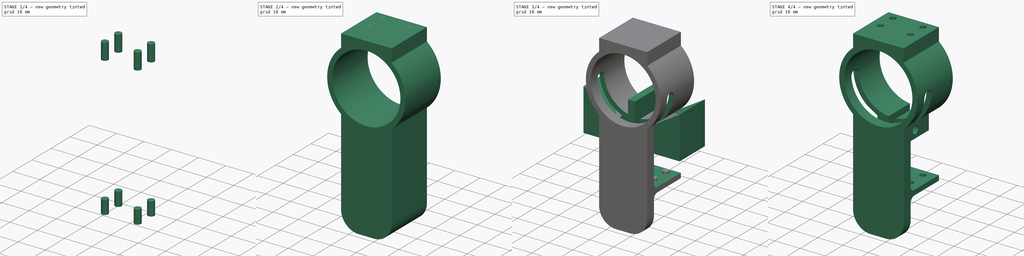
[diagram: build sequence overview — one tinted view per stage of 4, left to right]
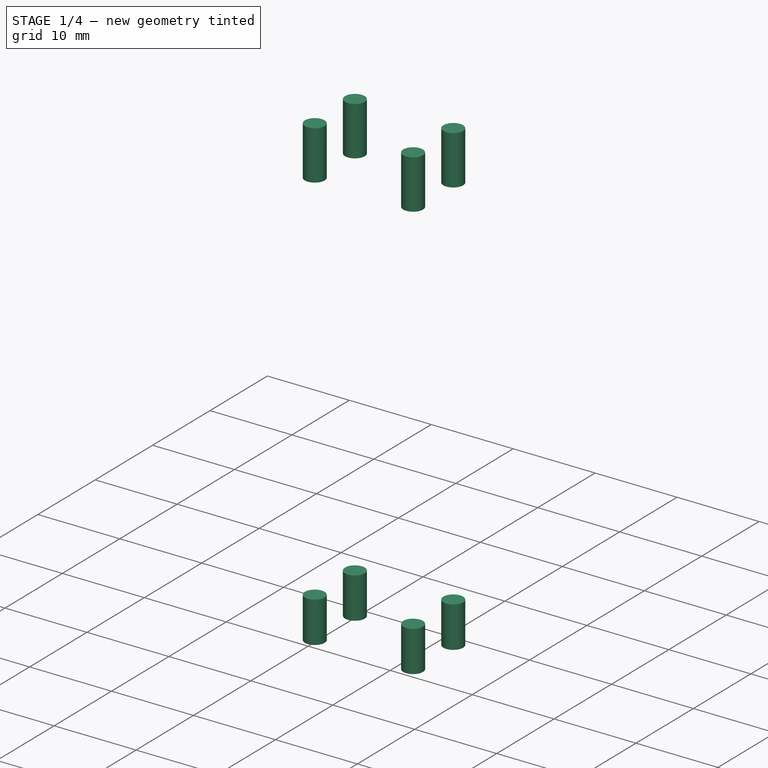
[diagram: stage 1 of 4 — iso view after this stage's code; geometry added in this stage tinted green]
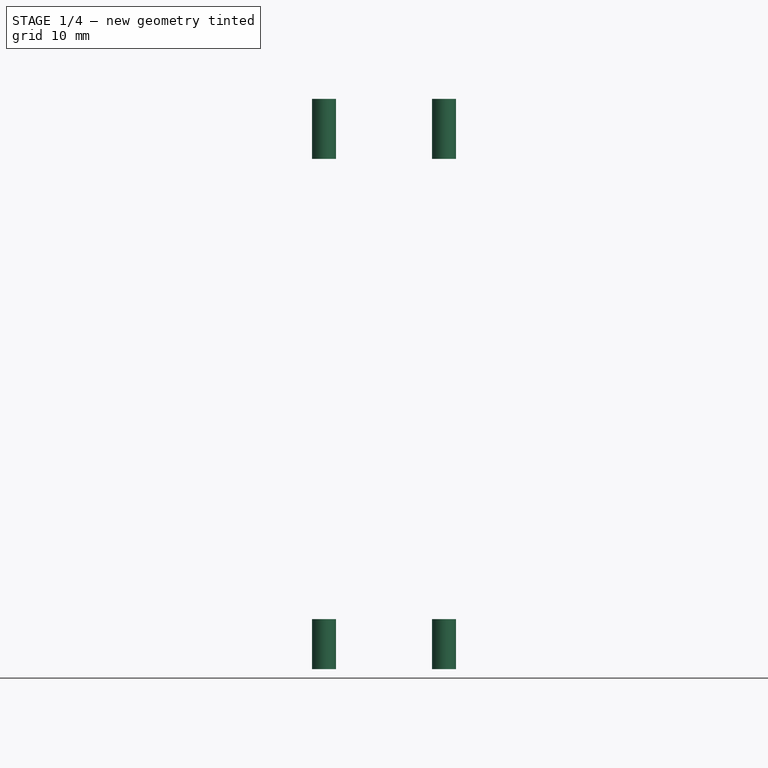
[diagram: stage 1 of 4 — front view after this stage's code; geometry added in this stage tinted green]
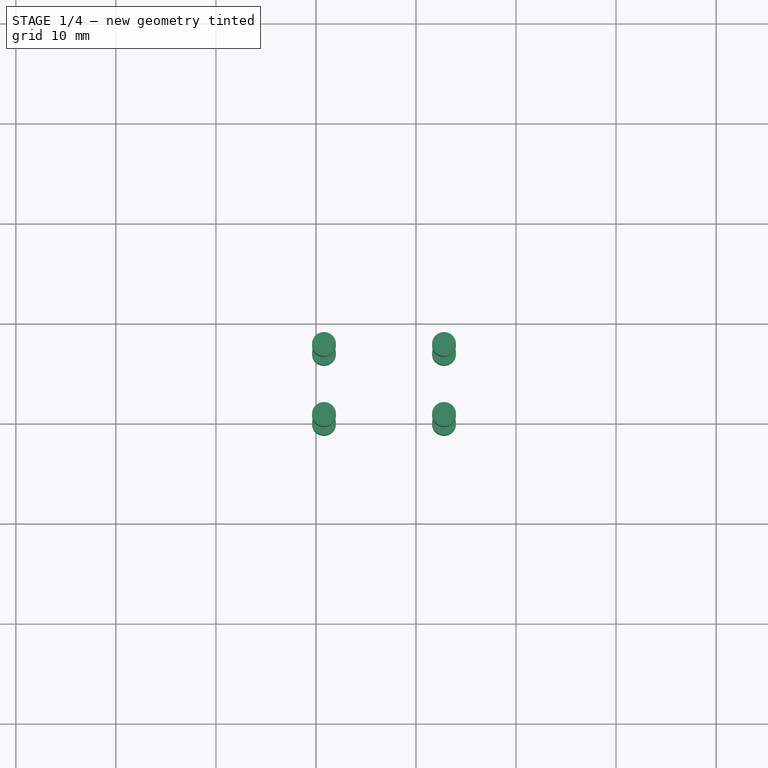
[diagram: stage 1 of 4 — top view after this stage's code; geometry added in this stage tinted green]
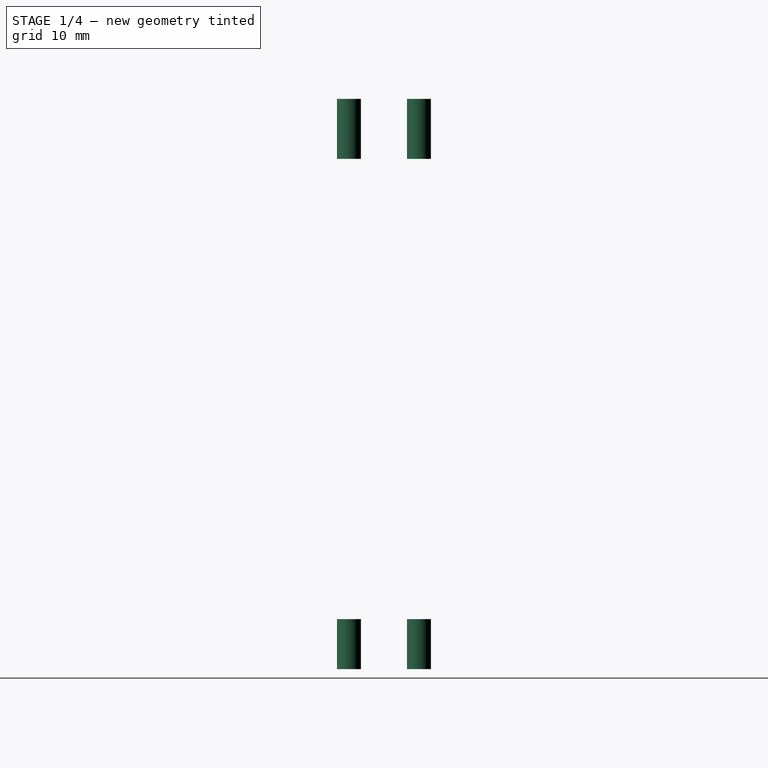
[diagram: stage 1 of 4 — right view after this stage's code; geometry added in this stage tinted green]
FCSTD DOCUMENT  (FreeCAD 0.16R6698 (Git))
Label: body-bracket-c
License: All rights reserved
LicenseURL: http://en.wikipedia.org/wiki/All_rights_reserved
objects: Part::Extrusion×5, Sketcher::SketchObject×4, Part::Cut×3, Part::MultiFuse×1
note: 13 computed .brp shape members not serialized (recipe doc carries the construction recipe); baked Part::Feature solids carry a one-line shape summary decoded from their .brp

FEATURE [Sketcher::SketchObject] Sketch003
  Placement = pos=(0,0,70) rot=(0,0,1;0rad)
  sketch-geometry (5):
    g0: LineSegment [constr] StartX=16.8 StartY=0 StartZ=0 EndX=16.8 EndY=20 EndZ=0
    g1: Circle CenterX=10.8 CenterY=17 CenterZ=0 NormalX=0 NormalY=0 NormalZ=1 Radius=1.2
    g2: Circle CenterX=22.8 CenterY=17 CenterZ=0 NormalX=0 NormalY=0 NormalZ=1 Radius=1.2
    g3: Circle CenterX=10.8 CenterY=10 CenterZ=0 NormalX=0 NormalY=0 NormalZ=1 Radius=1.2
    g4: Circle CenterX=22.8 CenterY=10 CenterZ=0 NormalX=0 NormalY=0 NormalZ=1 Radius=1.2
  constraints (14):
    c: PointOnObject(g0,g-1)
    c: Vertical(g0)
    c: DistanceX(g-2,g0) = 16.8
    c: DistanceY(g0,g0) = 20
    c: Symmetric(g1,g2,g0)
    c: Symmetric(g3,g4,g0)
    c: Radius(g3) = 1.2
    c: Equal(g3,g4)
    c: Equal(g4,g2)
    c: Equal(g2,g1)
    c: Distance(g3,g4) = 12
    c: Distance(g1,g2) = 12
    c: DistanceY(g-1,g2) = 17
    c: DistanceY(g-1,g4) = 10
FEATURE [Part::Extrusion] Extrude003  label="Mounting_Holes_Top"
  Base = -> Sketch003
  Dir = (0,0,-6)
  Solid = true
FEATURE [Part::Extrusion] Extrude004  label="Mouning_Holes_Bottom"
  Base = -> Sketch003
  Dir = (0,0,5)
  Placement = pos=(0,0,-57) rot=(0,0,1;0rad)
  Solid = true
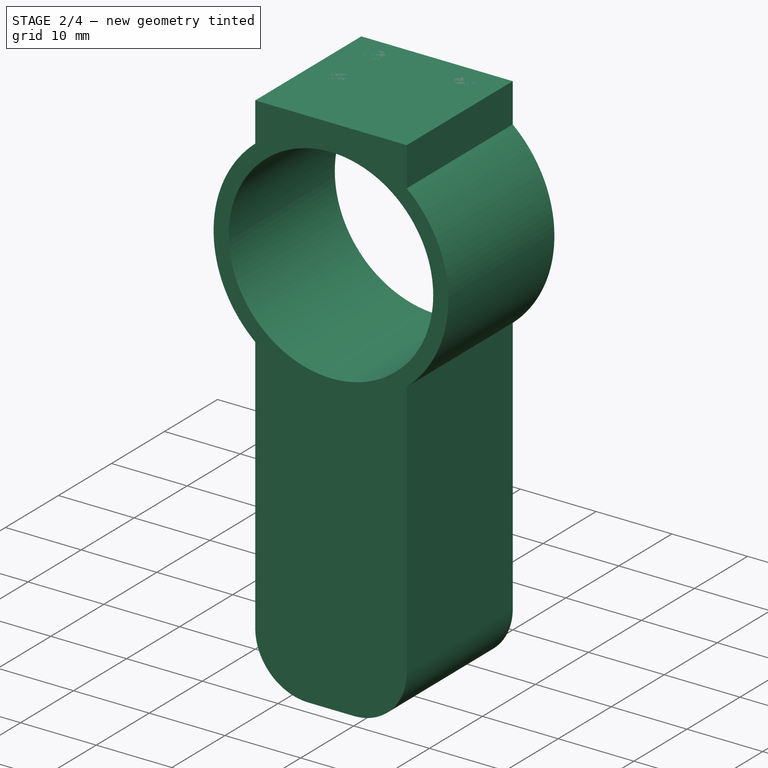
[diagram: stage 2 of 4 — iso view after this stage's code; geometry added in this stage tinted green]
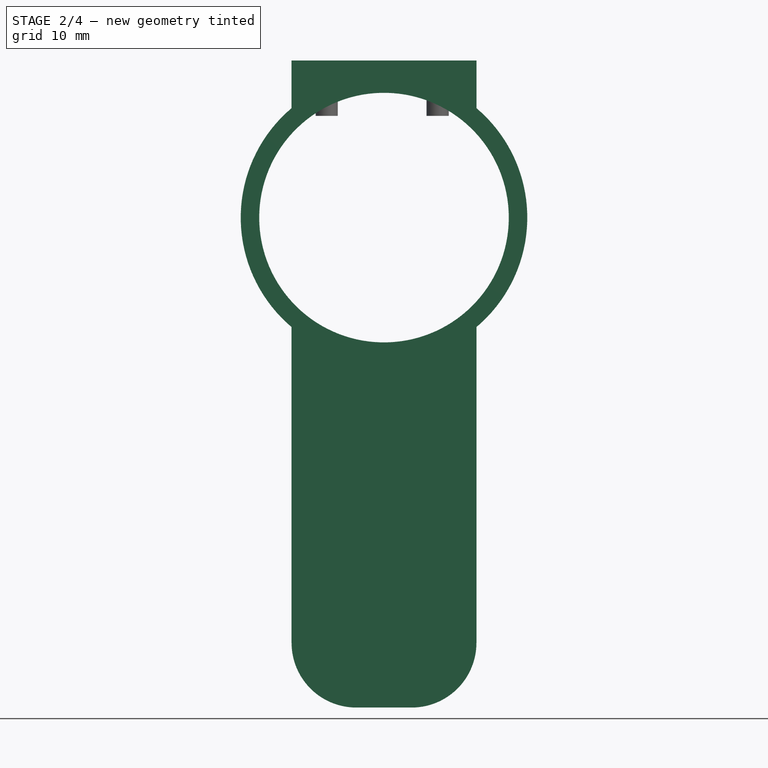
[diagram: stage 2 of 4 — front view after this stage's code; geometry added in this stage tinted green]
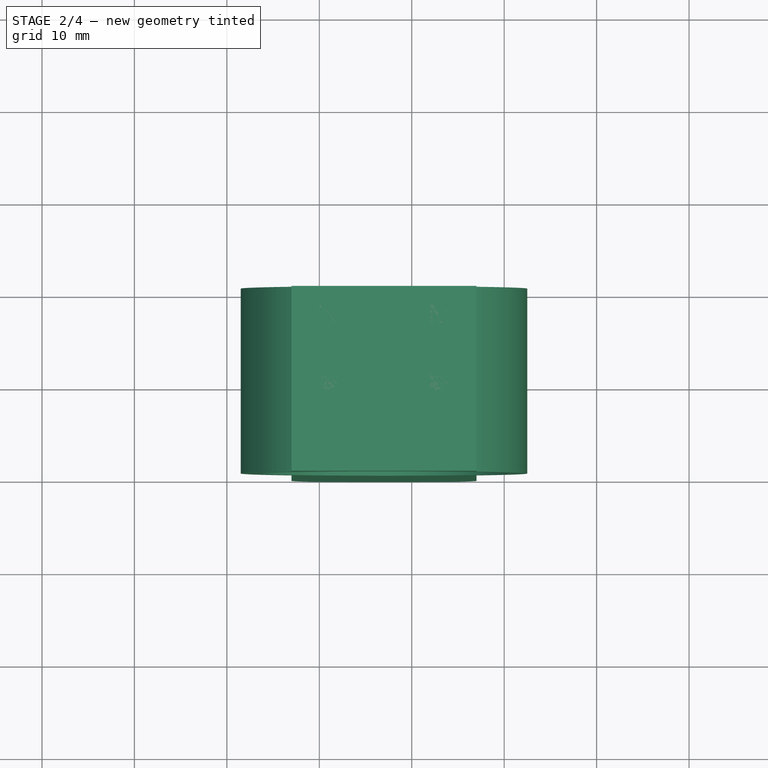
[diagram: stage 2 of 4 — top view after this stage's code; geometry added in this stage tinted green]
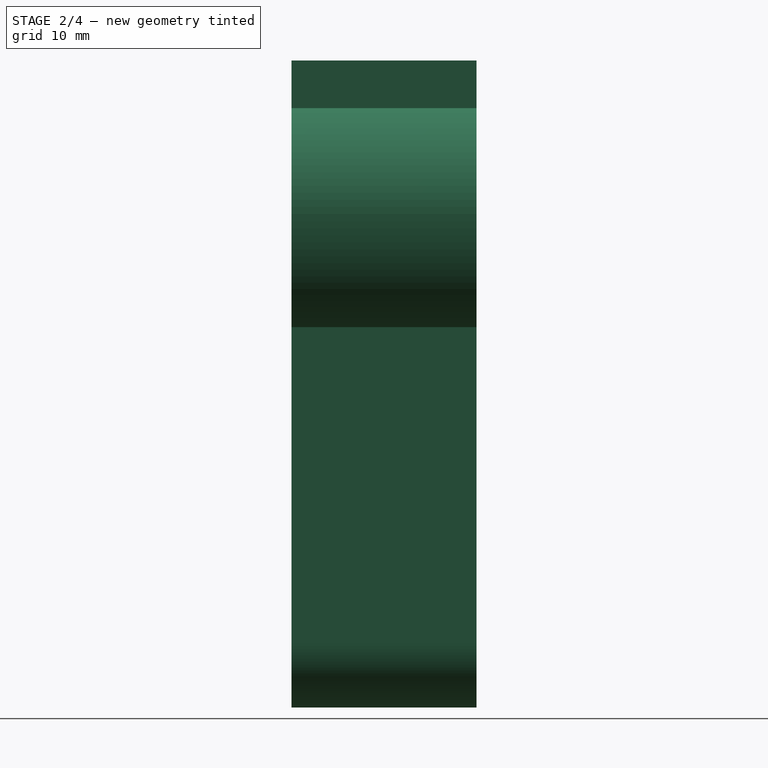
[diagram: stage 2 of 4 — right view after this stage's code; geometry added in this stage tinted green]
FEATURE [Sketcher::SketchObject] Sketch001
  Placement = pos=(17,0,0) rot=(1,0,0;1.5708rad)
  sketch-geometry (11):
    g0: LineSegment StartX=-10 StartY=70 StartZ=0 EndX=10 EndY=70 EndZ=0
    g1: Circle CenterX=0 CenterY=53 CenterZ=0 NormalX=0 NormalY=0 NormalZ=1 Radius=13.5
    g2: LineSegment StartX=-10 StartY=70 StartZ=0 EndX=-10 EndY=64.8427 EndZ=0
    g3: LineSegment StartX=-10 StartY=41.1573 StartZ=0 EndX=-10 EndY=7 EndZ=0
    g4: ArcOfCircle CenterX=0 CenterY=53 CenterZ=0 NormalX=0 NormalY=0 NormalZ=1 Radius=15.5 StartAngle=2.27203 EndAngle=4.01115
    g5: LineSegment StartX=10 StartY=70 StartZ=0 EndX=10 EndY=64.8427 EndZ=0
    g6: ArcOfCircle CenterX=0 CenterY=53 CenterZ=0 NormalX=0 NormalY=0 NormalZ=1 Radius=15.5 StartAngle=5.41362 EndAngle=7.15275
    g7: LineSegment StartX=10 StartY=41.1573 StartZ=0 EndX=10 EndY=7 EndZ=0
    g8: LineSegment StartX=-3 StartY=0 StartZ=0 EndX=3 EndY=0 EndZ=0
    g9: ArcOfCircle CenterX=3 CenterY=7 CenterZ=0 NormalX=0 NormalY=0 NormalZ=1 Radius=7 StartAngle=4.71239 EndAngle=6.28319
    g10: ArcOfCircle CenterX=-3 CenterY=7 CenterZ=0 NormalX=0 NormalY=0 NormalZ=1 Radius=7 StartAngle=3.14159 EndAngle=4.71239
  constraints (31):
    c: Horizontal(g0)
    c: PointOnObject(g1,g-2)
    c: DistanceY(g-1,g1) = 53
    c: Coincident(g0,g2)
    c: Vertical(g2)
    c: Vertical(g3)
    c: Coincident(g4,g1)
    c: Coincident(g4,g2)
    c: Coincident(g4,g3)
    c: Coincident(g5,g0)
    c: Vertical(g5)
    c: Coincident(g6,g1)
    c: Coincident(g6,g5)
    c: Vertical(g7)
    c: Coincident(g6,g7)
    c: Equal(g6,g4)
    c: Equal(g5,g2)
    c: Radius(g1) = 13.5
    c: Radius(g6) = 15.5
    c: DistanceY(g-1,g0) = 70
    c: Horizontal(g8)
    c: Tangent(g7,g9) = 1.5708
    c: Tangent(g8,g9) = -1.5708
    c: Tangent(g8,g10) = -1.5708
    c: Tangent(g3,g10) = -1.5708
    c: Equal(g10,g9)
    c: PointOnObject(g2,g3)
    c: PointOnObject(g5,g7)
    c: PointOnObject(g-1,g8)
    c: DistanceX(g3,g7) = 20
    c: Radius(g9) = 7
FEATURE [Part::Extrusion] Extrude001
  Base = -> Sketch001
  Dir = (0,20,0)
  Solid = true
FEATURE [Part::MultiFuse] Fusion
  Shapes = -> [Extrude004,Extrude003]
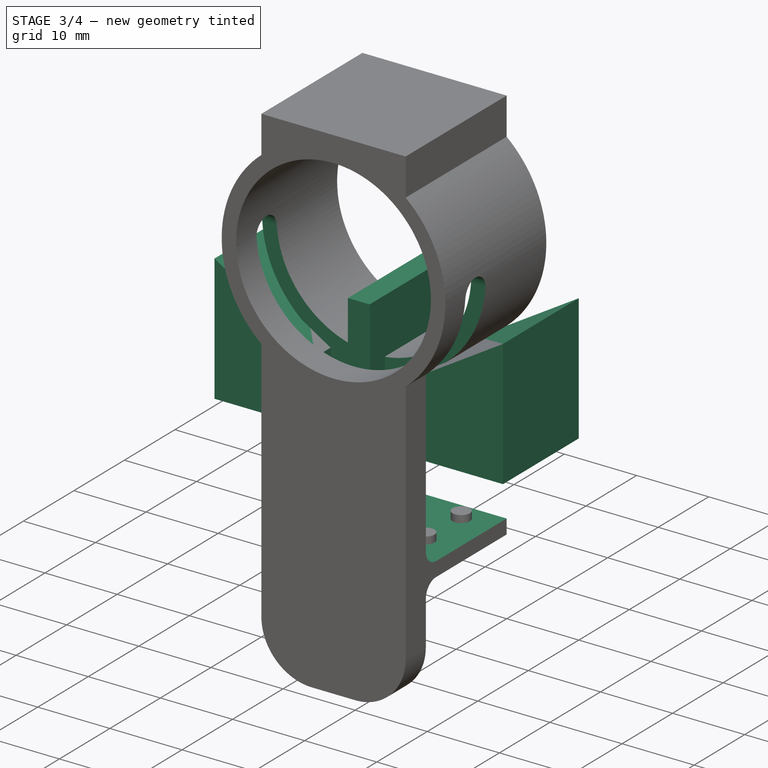
[diagram: stage 3 of 4 — iso view after this stage's code; geometry added in this stage tinted green]
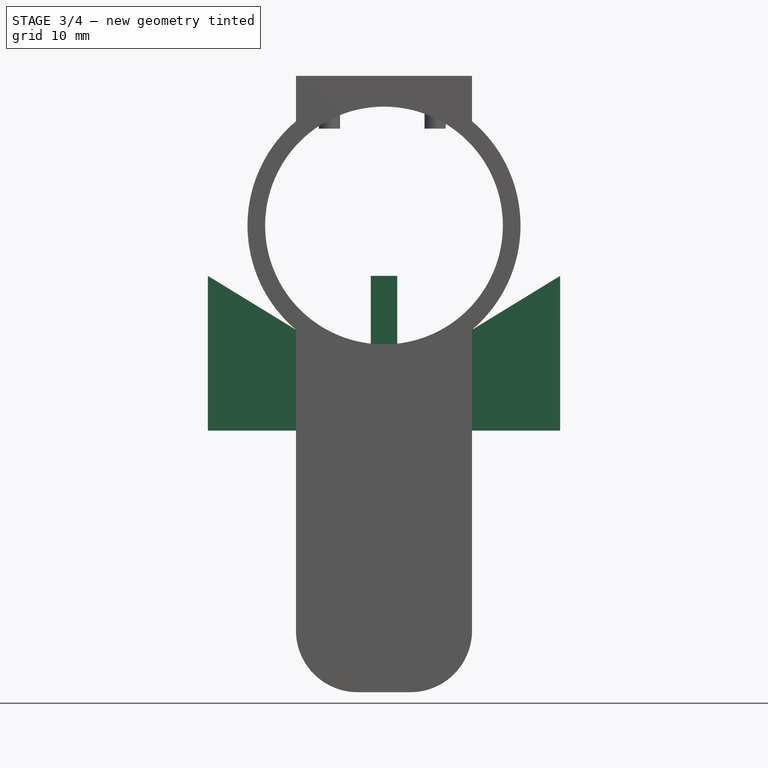
[diagram: stage 3 of 4 — front view after this stage's code; geometry added in this stage tinted green]
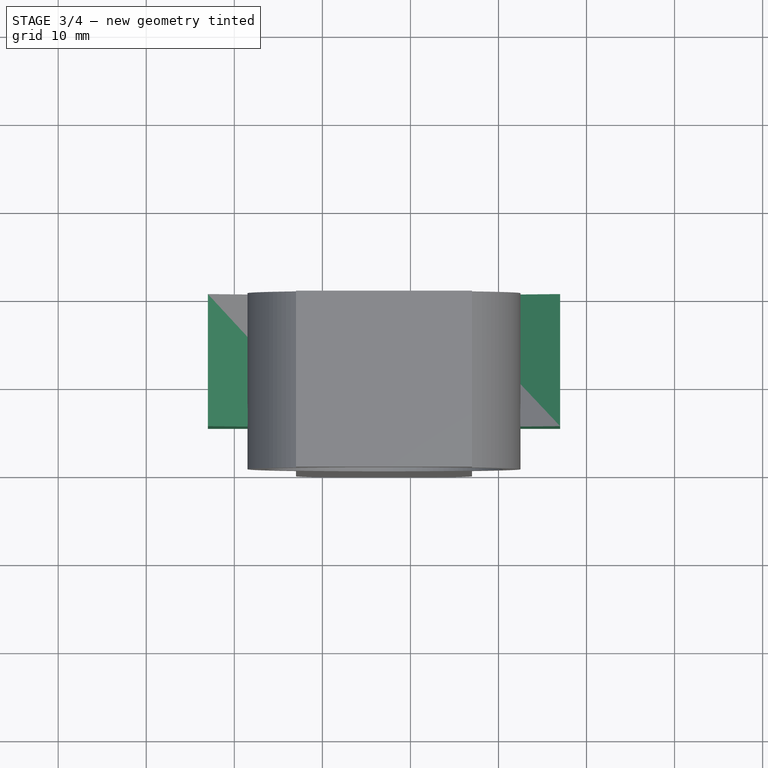
[diagram: stage 3 of 4 — top view after this stage's code; geometry added in this stage tinted green]
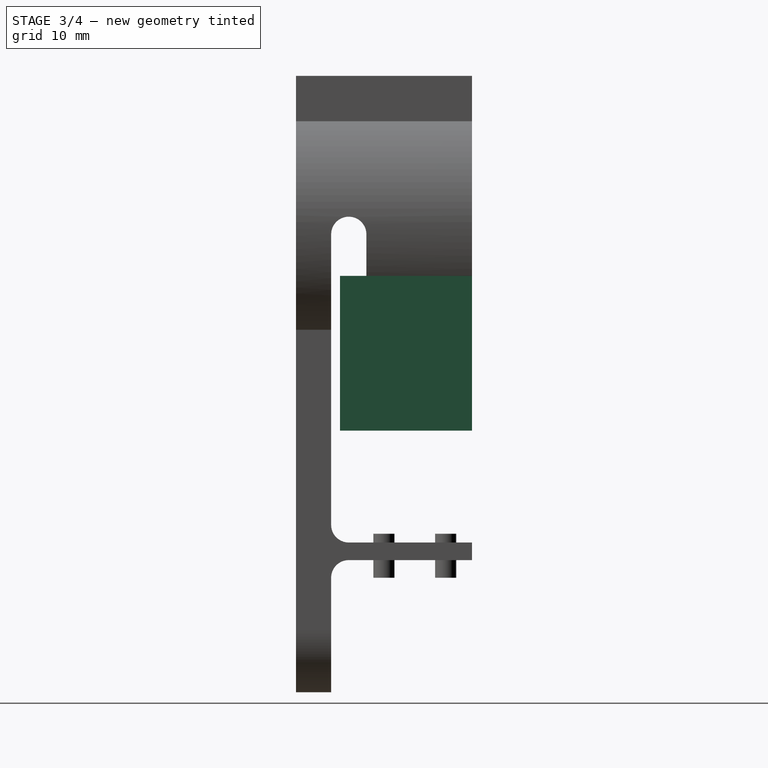
[diagram: stage 3 of 4 — right view after this stage's code; geometry added in this stage tinted green]
FEATURE [Sketcher::SketchObject] Sketch
  Placement = pos=(0,0,0) rot=(0.57735,0.57735,0.57735;2.0944rad)
  sketch-geometry (18):
    g0: LineSegment StartX=4 StartY=52 StartZ=0 EndX=4 EndY=19 EndZ=0
    g1: LineSegment StartX=6 StartY=17 StartZ=0 EndX=45 EndY=17 EndZ=0
    g2: LineSegment StartX=45 StartY=17 StartZ=0 EndX=45 EndY=32 EndZ=0
    g3: ArcOfCircle CenterX=6 CenterY=19 CenterZ=0 NormalX=0 NormalY=0 NormalZ=1 Radius=2 StartAngle=3.14159 EndAngle=4.71239
    g4: LineSegment [constr] StartX=4 StartY=19 StartZ=0 EndX=0 EndY=19 EndZ=0
    g5: LineSegment StartX=6 StartY=15 StartZ=0 EndX=45 EndY=15 EndZ=0
    g6: LineSegment StartX=45 StartY=15 StartZ=0 EndX=45 EndY=-5 EndZ=0
    g7: LineSegment StartX=45 StartY=-5 StartZ=0 EndX=6 EndY=-5 EndZ=0
    g8: LineSegment StartX=4 StartY=-3 StartZ=0 EndX=4 EndY=13 EndZ=0
    g9: ArcOfCircle CenterX=6 CenterY=13 CenterZ=0 NormalX=0 NormalY=0 NormalZ=1 Radius=2 StartAngle=1.5708 EndAngle=3.14159
    g10: ArcOfCircle CenterX=6 CenterY=-3 CenterZ=0 NormalX=0 NormalY=0 NormalZ=1 Radius=2 StartAngle=3.14159 EndAngle=4.71239
    g11: LineSegment [constr] StartX=4 StartY=13 StartZ=0 EndX=0 EndY=13 EndZ=0
    g12: LineSegment [constr] StartX=6 StartY=17 StartZ=0 EndX=6 EndY=15 EndZ=0
    g13: LineSegment StartX=8 StartY=52 StartZ=0 EndX=8 EndY=32 EndZ=0
    g14: LineSegment StartX=8 StartY=32 StartZ=0 EndX=45 EndY=32 EndZ=0
    g15: ArcOfCircle CenterX=6 CenterY=52 CenterZ=0 NormalX=0 NormalY=0 NormalZ=1 Radius=2 StartAngle=0 EndAngle=3.14159
    g16: LineSegment [constr] StartX=4 StartY=52 StartZ=0 EndX=8 EndY=52 EndZ=0
    g17: Circle CenterX=12.5 CenterY=35 CenterZ=0 NormalX=0 NormalY=0 NormalZ=1 Radius=1.5
  constraints (50):
    c: Coincident(g1,g2)
    c: Horizontal(g1)
    c: Vertical(g0)
    c: Vertical(g2)
    c: Tangent(g0,g3) = -1.5708
    c: Tangent(g1,g3) = -1.5708
    c: Coincident(g4,g0)
    c: Horizontal(g4)
    c: PointOnObject(g4,g-2)
    c: Coincident(g5,g6)
    c: Coincident(g6,g7)
    c: Horizontal(g5)
    c: Horizontal(g7)
    c: Vertical(g6)
    c: Vertical(g8)
    c: Tangent(g5,g9) = 1.5708
    c: Tangent(g8,g9) = 1.5708
    c: Tangent(g8,g10) = 1.5708
    c: Tangent(g7,g10) = 1.5708
    c: Equal(g10,g9)
    c: Equal(g9,g3)
    c: Coincident(g11,g8)
    c: PointOnObject(g11,g-2)
    c: Horizontal(g11)
    c: Radius(g10) = 2
    c: Coincident(g12,g1)
    c: Coincident(g12,g5)
    c: DistanceY(g-1,g5) = 15
    c: Distance(g12) = 2
    c: DistanceX(g-1,g6) = 45
    c: DistanceY(g7,g-1) = 5
    c: DistanceY(g-1,g2) = 32
    c: Vertical(g13)
    c: Coincident(g14,g13)
    c: Coincident(g14,g2)
    c: Horizontal(g14)
    c: Coincident(g15,g13)
    c: Equal(g15,g10)
    c: Coincident(g16,g13)
    c: Horizontal(g16)
    c: PointOnObject(g15,g16)
    c: Coincident(g15,g16)
    c: Coincident(g15,g0)
    c: DistanceY(g13,g13) = 20
    c: Equal(g1,g5)
    c: Radius(g17) = 1.5
    c: DistanceX(g13,g17) = 4.5
    c: DistanceY(g13,g17) = 3
    c: Distance(g11) = 4
    c: Vertical(g12)
FEATURE [Part::Extrusion] Extrude
  Base = -> Sketch
  Dir = (36,0,0)
  Placement = pos=(-1,0,0) rot=(0,0,1;0rad)
  Solid = true
FEATURE [Sketcher::SketchObject] Sketch002
  Placement = pos=(17,0,0) rot=(1,0,0;1.5708rad)
  sketch-geometry (15):
    g0: LineSegment StartX=-1.5 StartY=47.2795 StartZ=0 EndX=1.5 EndY=47.2795 EndZ=0
    g1: LineSegment StartX=1.5 StartY=47.2795 StartZ=0 EndX=1.5 EndY=29.7084 EndZ=0
    g2: LineSegment StartX=1.5 StartY=29.7084 StartZ=0 EndX=-1.5 EndY=29.7084 EndZ=0
    g3: LineSegment StartX=-1.5 StartY=29.7084 StartZ=0 EndX=-1.5 EndY=47.2795 EndZ=0
    g4: LineSegment StartX=6 StartY=38.7084 StartZ=0 EndX=6 EndY=29.7084 EndZ=0
    g5: LineSegment StartX=6 StartY=29.7084 StartZ=0 EndX=20 EndY=29.7084 EndZ=0
    g6: LineSegment StartX=20 StartY=29.7084 StartZ=0 EndX=20 EndY=47.2795 EndZ=0
    g7: LineSegment StartX=20 StartY=47.2795 StartZ=0 EndX=6 EndY=38.7084 EndZ=0
    g8: ArcOfCircle [constr] CenterX=0 CenterY=53 CenterZ=0 NormalX=0 NormalY=0 NormalZ=1 Radius=15.5 StartAngle=5.10987 EndAngle=5.41362
    g9: LineSegment StartX=-6 StartY=38.7084 StartZ=0 EndX=-6 EndY=29.7084 EndZ=0
    g10: LineSegment StartX=-6 StartY=29.7084 StartZ=0 EndX=-20 EndY=29.7084 EndZ=0
    g11: LineSegment StartX=-20 StartY=29.7084 StartZ=0 EndX=-20 EndY=47.2795 EndZ=0
    g12: LineSegment StartX=-20 StartY=47.2795 StartZ=0 EndX=-6 EndY=38.7084 EndZ=0
    g13: ArcOfCircle [constr] CenterX=0 CenterY=53 CenterZ=0 NormalX=0 NormalY=0 NormalZ=1 Radius=15.5 StartAngle=4.01115 EndAngle=4.31491
    g14: LineSegment [constr] StartX=10 StartY=41.1573 StartZ=0 EndX=-10 EndY=41.1573 EndZ=0
  constraints (45):
    c: Coincident(g0,g1)
    c: Coincident(g1,g2)
    c: Coincident(g2,g3)
    c: Coincident(g3,g0)
    c: Horizontal(g0)
    c: Vertical(g1)
    c: Vertical(g3)
    c: DistanceX(g0,g0) = 3
    c: Vertical(g4)
    c: Coincident(g4,g5)
    c: Horizontal(g5)
    c: Coincident(g5,g6)
    c: Vertical(g6)
    c: Coincident(g6,g7)
    c: Coincident(g7,g4)
    c: PointOnObject(g4,g2)
    c: DistanceY(g4,g4) = 9
    c: Coincident(g8,g4)
    c: Radius(g8) = 15.5
    c: PointOnObject(g8,g-2)
    c: PointOnObject(g8,g7)
    c: PointOnObject(g6,g0)
    c: Vertical(g9)
    c: Coincident(g9,g10)
    c: Horizontal(g10)
    c: Coincident(g10,g11)
    c: Vertical(g11)
    c: Coincident(g11,g12)
    c: Coincident(g12,g9)
    c: Coincident(g13,g9)
    c: PointOnObject(g13,g12)
    c: Equal(g10,g5)
    c: Equal(g8,g13)
    c: Equal(g11,g6)
    c: Symmetric(g9,g4,g-2)
    c: Equal(g9,g4)
    c: Coincident(g14,g8)
    c: Horizontal(g14)
    c: Coincident(g14,g13)
    c: Horizontal(g2)
    c: Symmetric(g2,g1,g-2)
    c: DistanceX(g9,g4) = 12
    c: Distance(g14) = 20
    c: DistanceX(g10,g5) = 40
    c: DistanceY(g-1,g8) = 53
FEATURE [Part::Extrusion] Extrude002
  Base = -> Sketch002
  Dir = (0,15,0)
  Placement = pos=(0,5,0) rot=(0,0,1;0rad)
  Solid = true
FEATURE [Part::Cut] Cut
  Base = -> Extrude001
  Tool = -> Extrude
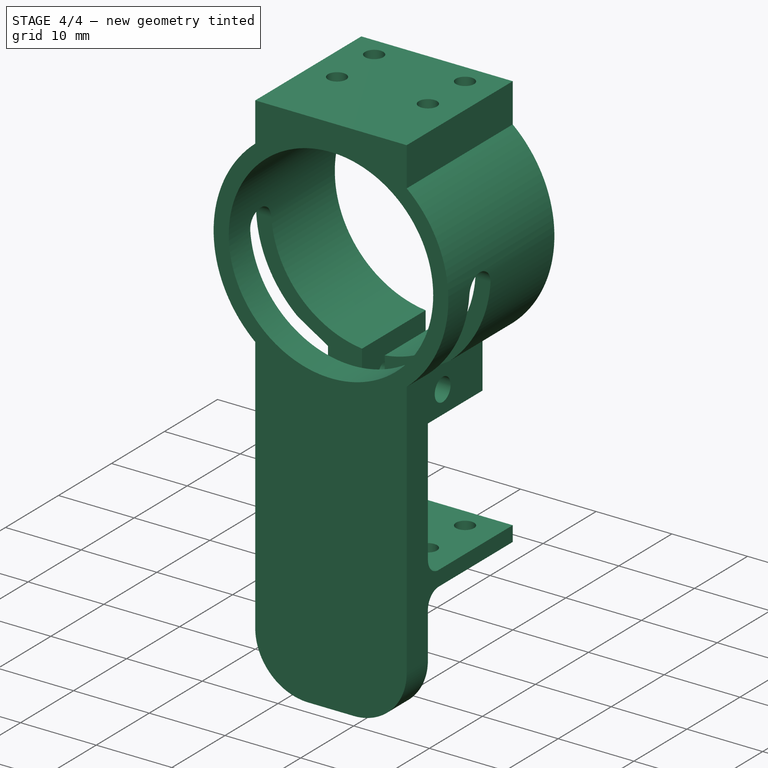
[diagram: stage 4 of 4 — iso view after this stage's code; geometry added in this stage tinted green]
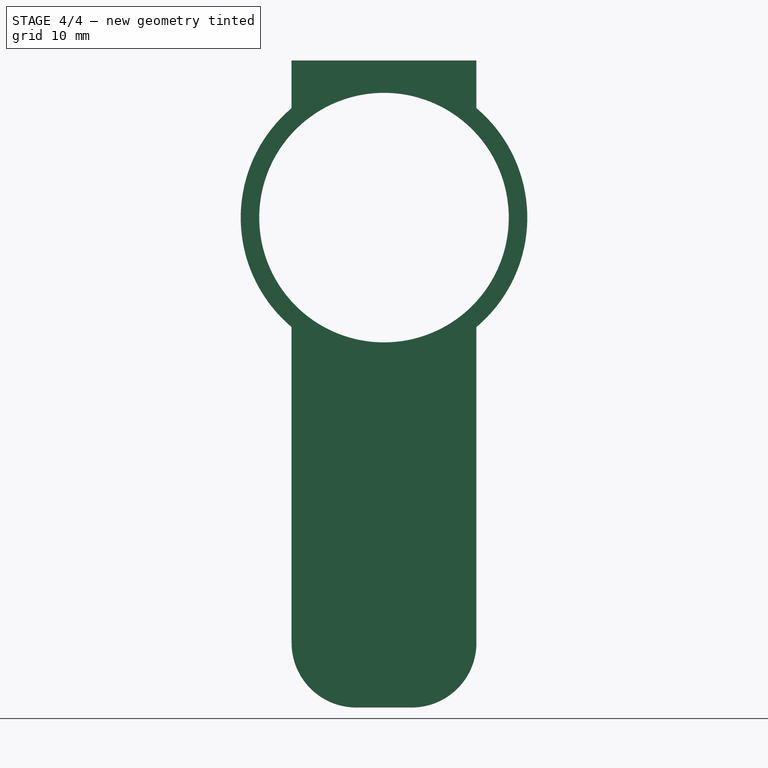
[diagram: stage 4 of 4 — front view after this stage's code; geometry added in this stage tinted green]
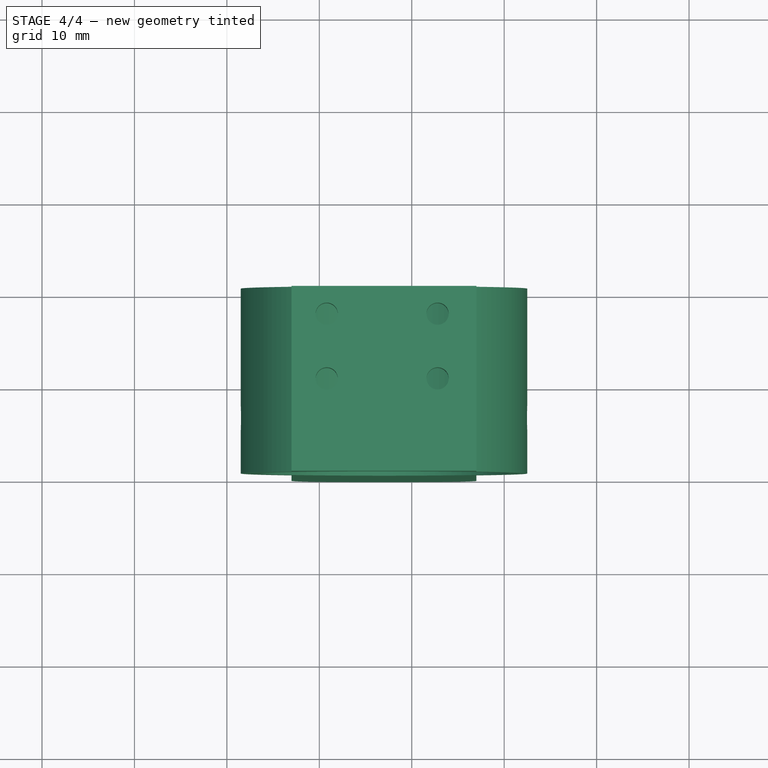
[diagram: stage 4 of 4 — top view after this stage's code; geometry added in this stage tinted green]
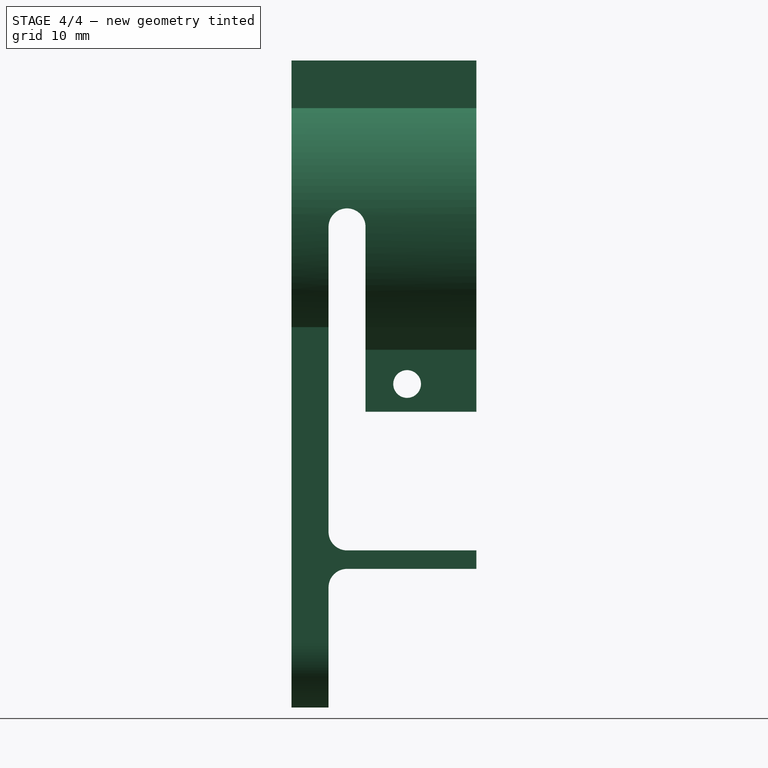
[diagram: stage 4 of 4 — right view after this stage's code; geometry added in this stage tinted green]
FEATURE [Part::Cut] Cut001
  Base = -> Cut
  Tool = -> Extrude002
FEATURE [Part::Cut] Cut002
  Base = -> Cut001
  Tool = -> Fusion
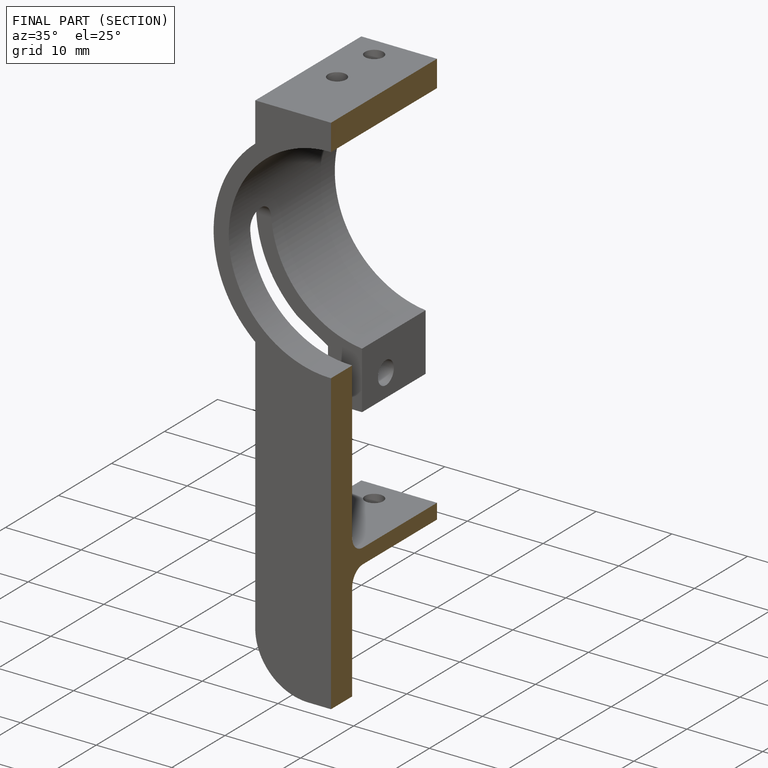
[diagram: finished part — half-section view (interior)]
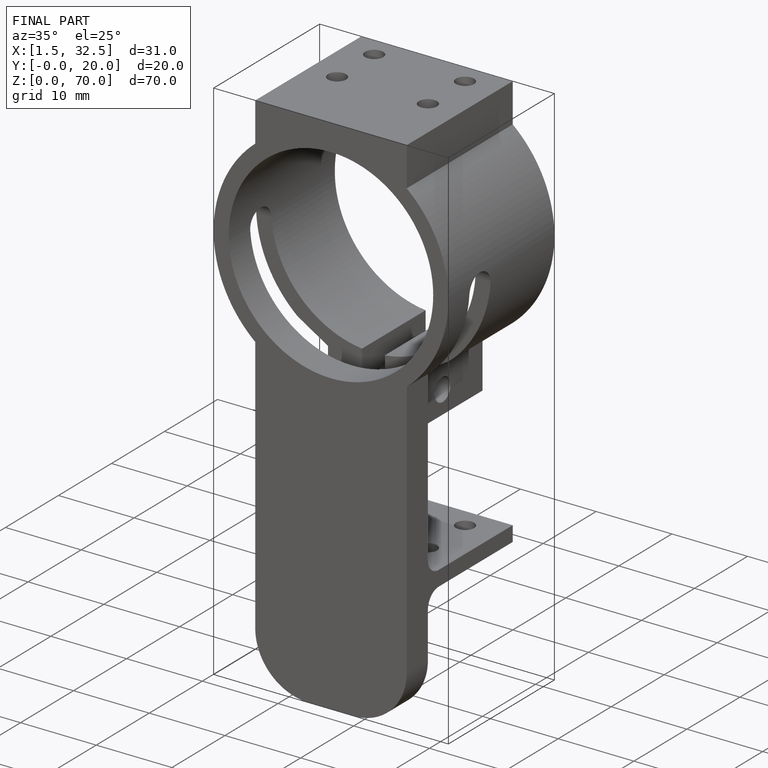
[diagram: finished part — iso view with bounding-box wireframe]
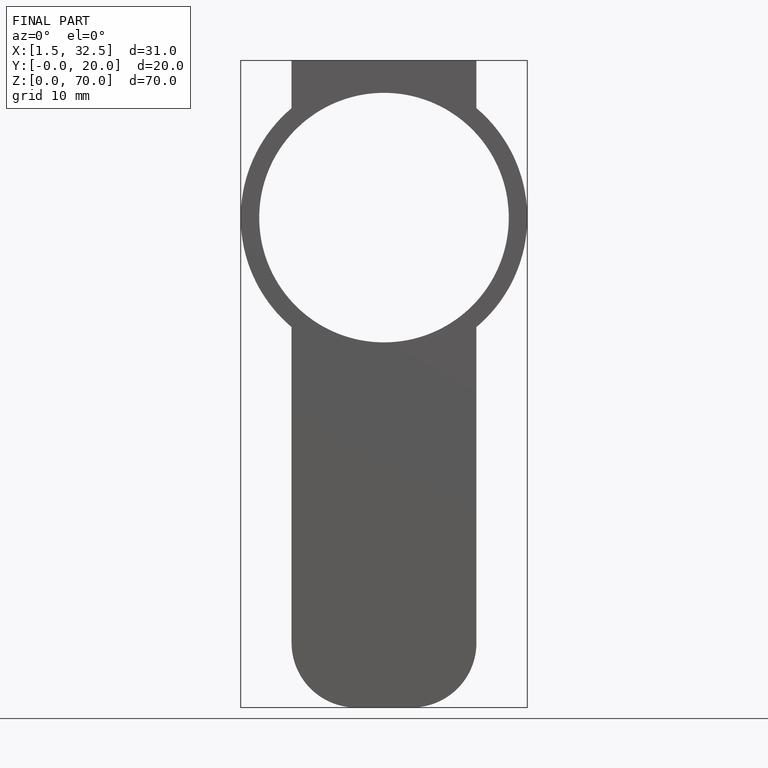
[diagram: finished part — front view with bounding-box wireframe]
